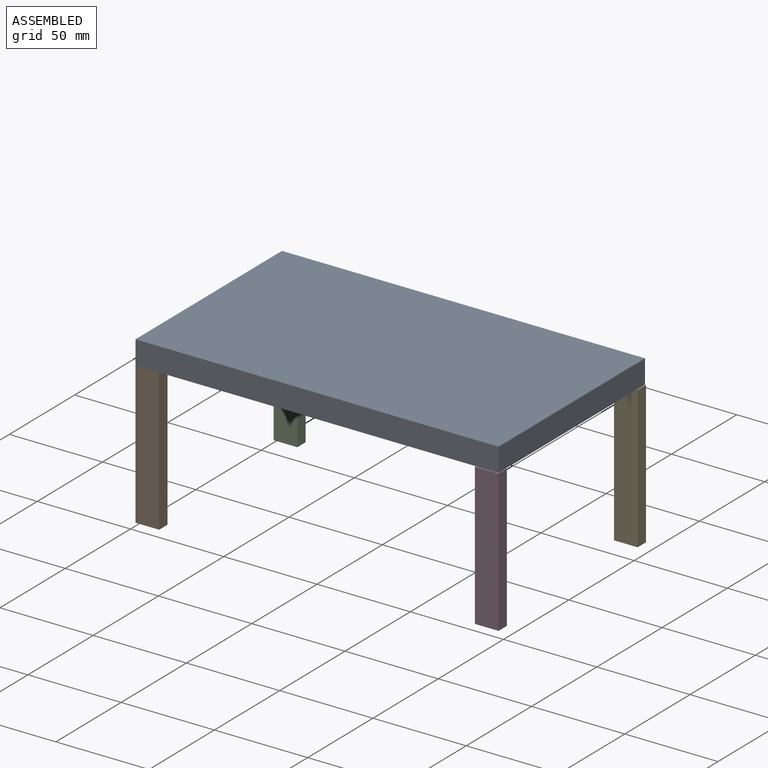
[diagram: assembled view]
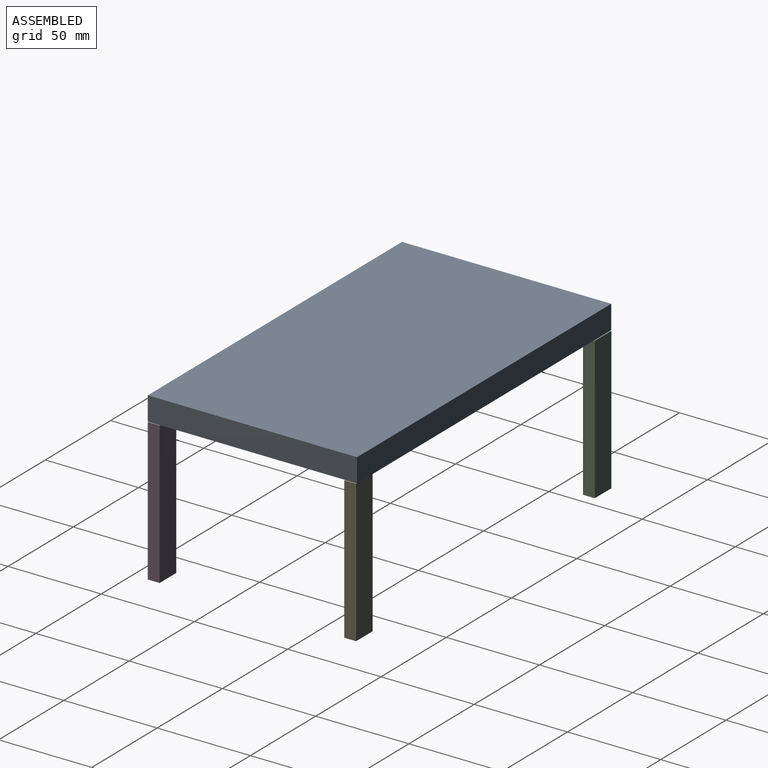
[diagram: assembled view, second angle]
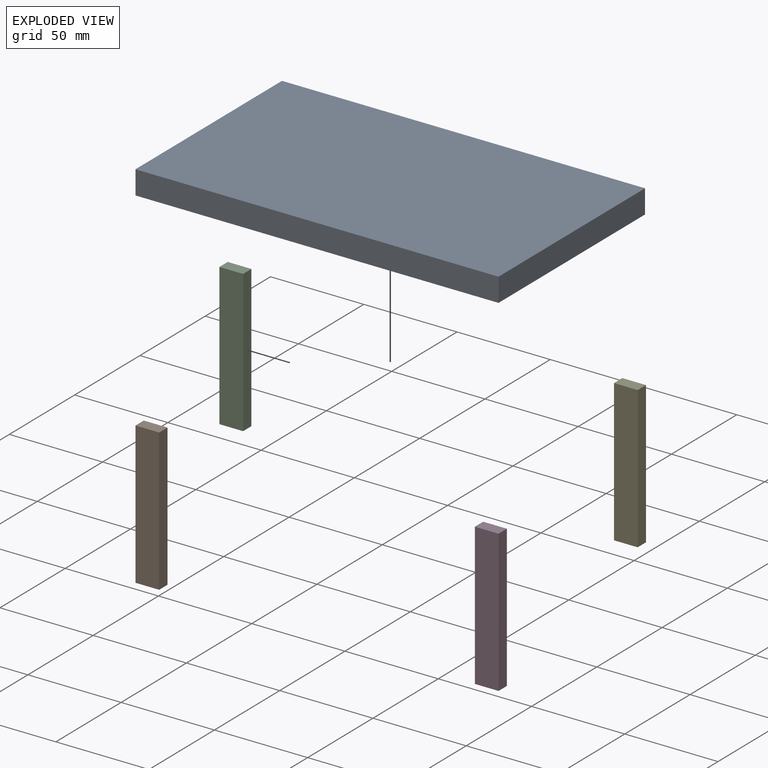
[diagram: exploded view]
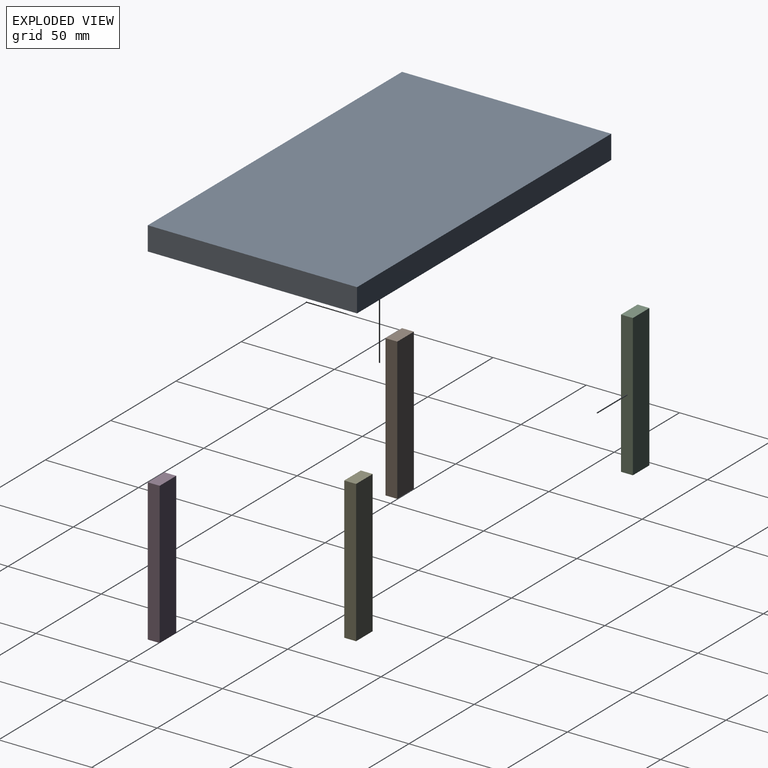
[diagram: exploded view, second angle]
ASSEMBLY  parts=5 mates=2
PART A: 6 faces, bbox 194.7x112.2x12.7 mm
  f0: plane 194.67x12.7mm, normal (0,-1,0), area 2472.3mm2, adj f1,f3,f4,f5
  f1: plane 112.18x12.7mm, normal (1,0,0), area 1424.7mm2, adj f0,f2,f4,f5
  f2: plane 194.67x12.7mm, normal (0,1,0), area 2472.3mm2, adj f1,f3,f4,f5
  f3: plane 112.18x12.7mm, normal (-1,0,0), area 1424.7mm2, adj f0,f2,f4,f5
  f4: plane 194.67x112.18mm, normal (0,0,1), area 21837.9mm2, adj f0,f1,f2,f3
  f5: plane 194.67x112.18mm, normal (0,0,-1), area 21837.9mm2, adj f0,f1,f2,f3
PART B: 6 faces, bbox 12.7x6.4x76.2 mm
  f0: plane 12.7x6.35mm, normal (0,0,-1), area 80.6mm2, adj f1,f3,f4,f5
  f1: plane 76.2x6.35mm, normal (1,0,0), area 483.9mm2, adj f0,f2,f4,f5
  f2: plane 12.7x6.35mm, normal (0,0,1), area 80.6mm2, adj f1,f3,f4,f5
  f3: plane 76.2x6.35mm, normal (-1,0,0), area 483.9mm2, adj f0,f2,f4,f5
  f4: plane 76.2x12.7mm, normal (0,-1,0), area 967.7mm2, adj f0,f1,f2,f3
  f5: plane 76.2x12.7mm, normal (0,1,0), area 967.7mm2, adj f0,f1,f2,f3
PART C: same geometry as B
PART D: same geometry as B
PART E: same geometry as B
PLACE A t=(-45.87,-24.4,-19.25)mm fixed
PLACE B t=(-291.34,-95.22,-101.1)mm
PLACE C t=(-291.39,10.67,-101.58)mm
PLACE D t=(-109.37,-95.22,-101.45)mm
PLACE E t=(-108.8,10.5,-101.17)mm
MATE fastened B.f2 <-> A.f5  axis (0,0,1) through (-161.22,-101.57,-19.25)mm
MATE slider D.f2 <-> A.f5  axis (0,0,1) through (33.45,-101.57,-19.6)mm
